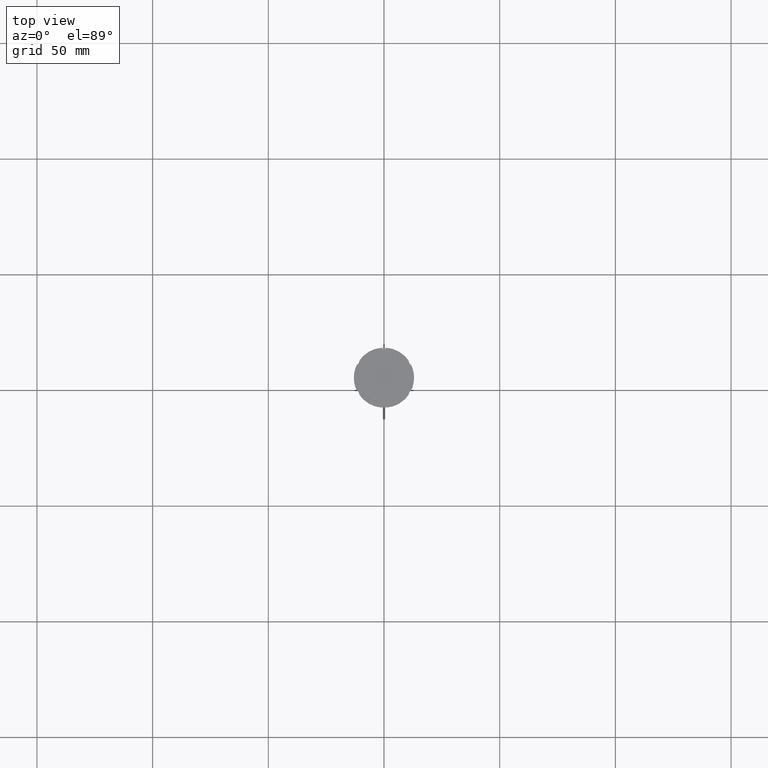
[diagram: clean part render]
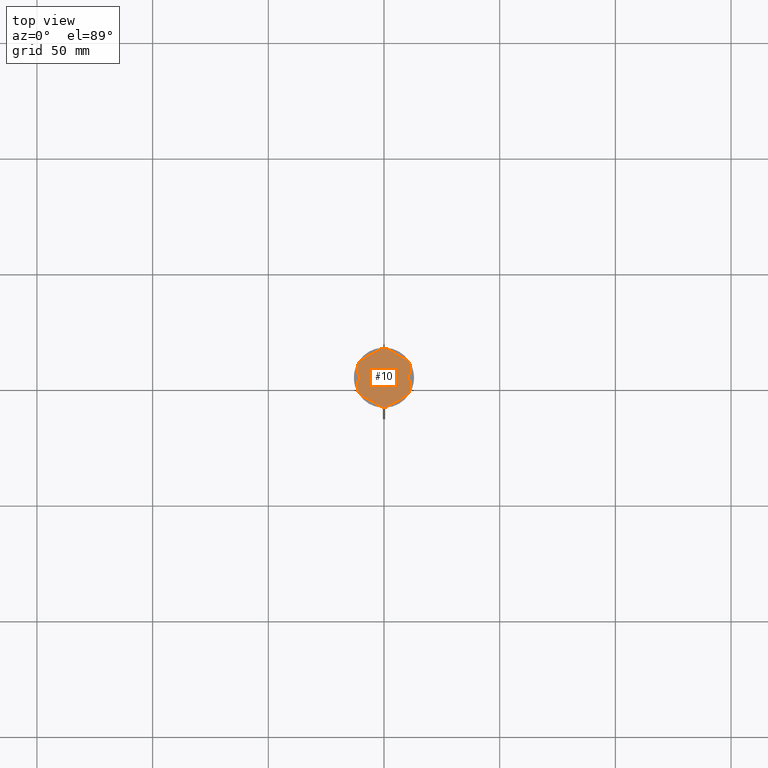
[diagram: same view with one face highlighted and labeled with its STEP entity id]
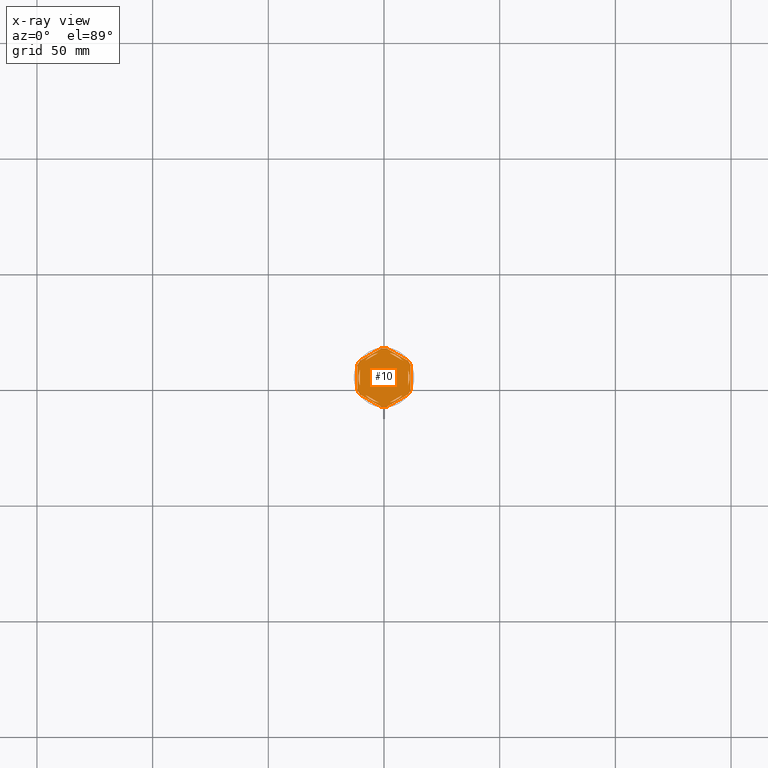
[diagram: x-ray of the same camera — body ghosted, the highlighted face saturated]
A machine part, top view. The second image highlights one B-rep face of the part: STEP entity #10.
The next image is the same camera in x-ray: the body ghosted, the highlighted face saturated — about 0% of this face is hidden behind the body in this view.
In plain terms, the highlighted planar face has unit normal (0, 0, 1).
Its self-contained STEP definition (entity closure, byte-faithful):
#7 = CARTESIAN_POINT ( 'NONE',  ( 0.000000000000000000, 0.000000000000000000, -1.000000000000000000 ) ) ;
#10 = ADVANCED_FACE ( 'NONE', ( #379, #1938, #758, #1639, #2527, #1472, #2771 ), #141, .T. ) ;
#18 = CARTESIAN_POINT ( 'NONE',  ( -8.089454172900133244, -7.453907108661111280, -1.000000000000000888 ) ) ;
#32 = CARTESIAN_POINT ( 'NONE',  ( 10.49999999999999289, -6.062177826491073063, -1.000000000000000888 ) ) ;
#70 = ORIENTED_EDGE ( 'NONE', *, *, #781, .F. ) ;
#78 = VECTOR ( 'NONE', #168, 1000.000000000000227 ) ;
#90 = DIRECTION ( 'NONE',  ( -0.000000000000000000, -0.000000000000000000, -1.000000000000000000 ) ) ;
#124 = AXIS2_PLACEMENT_3D ( 'NONE', #504, #2695, #1391 ) ;
#140 = CARTESIAN_POINT ( 'NONE',  ( 11.50000000000000000, 6.639528095680698350, -1.000000000000000000 ) ) ;
#141 = PLANE ( 'NONE',  #947 ) ;
#151 = EDGE_CURVE ( 'NONE', #1786, #2072, #622, .T. ) ;
#155 = EDGE_CURVE ( 'NONE', #2143, #1018, #2390, .T. ) ;
#168 = DIRECTION ( 'NONE',  ( 0.8660254037844387076, -0.4999999999999997780, 0.000000000000000000 ) ) ;
#176 = DIRECTION ( 'NONE',  ( -0.8660254037844387076, -0.4999999999999999445, 0.000000000000000000 ) ) ;
#181 = CIRCLE ( 'NONE', #596, 11.00000000000000000 ) ;
#217 = ORIENTED_EDGE ( 'NONE', *, *, #1669, .F. ) ;
#219 = CIRCLE ( 'NONE', #124, 11.00000000000000000 ) ;
#231 = ORIENTED_EDGE ( 'NONE', *, *, #1674, .F. ) ;
#240 = EDGE_CURVE ( 'NONE', #1504, #416, #1412, .T. ) ;
#253 = LINE ( 'NONE', #2699, #78 ) ;
#282 = CARTESIAN_POINT ( 'NONE',  ( -11.50000000000000000, 5.388877434122992582, -1.000000000000000000 ) ) ;
#293 = DIRECTION ( 'NONE',  ( 0.000000000000000000, 0.000000000000000000, 1.000000000000000000 ) ) ;
#320 = EDGE_LOOP ( 'NONE', ( #217, #779 ) ) ;
#331 = CARTESIAN_POINT ( 'NONE',  ( 11.49999999999999822, -6.639528095680694797, -1.000000000000000000 ) ) ;
#333 = VERTEX_POINT ( 'NONE', #282 ) ;
#366 = CARTESIAN_POINT ( 'NONE',  ( 0.000000000000000000, 0.000000000000000000, -1.000000000000000000 ) ) ;
#373 = CARTESIAN_POINT ( 'NONE',  ( 0.000000000000000000, 0.000000000000000000, -1.000000000000000000 ) ) ;
#377 = LINE ( 'NONE', #2166, #1334 ) ;
#379 = FACE_BOUND ( 'NONE', #320, .T. ) ;
#388 = DIRECTION ( 'NONE',  ( 0.8660254037844387076, -0.4999999999999999445, 0.000000000000000000 ) ) ;
#390 = ORIENTED_EDGE ( 'NONE', *, *, #240, .F. ) ;
#399 = CARTESIAN_POINT ( 'NONE',  ( 11.49999999999999822, -5.388877434122996135, -1.000000000000000000 ) ) ;
#414 = LINE ( 'NONE', #1266, #2308 ) ;
#416 = VERTEX_POINT ( 'NONE', #801 ) ;
#422 = LINE ( 'NONE', #1291, #961 ) ;
#437 = CARTESIAN_POINT ( 'NONE',  ( 0.000000000000000000, 0.000000000000000000, -1.000000000000000000 ) ) ;
#455 = CIRCLE ( 'NONE', #2784, 12.69999999999999929 ) ;
#461 = CARTESIAN_POINT ( 'NONE',  ( -11.50000000000000000, -5.388877434122992582, -1.000000000000000000 ) ) ;
#462 = LINE ( 'NONE', #32, #2393 ) ;
#476 = VERTEX_POINT ( 'NONE', #747 ) ;
#495 = CARTESIAN_POINT ( 'NONE',  ( 0.000000000000000000, 0.000000000000000000, -1.000000000000000000 ) ) ;
#504 = CARTESIAN_POINT ( 'NONE',  ( 0.000000000000000000, 0.000000000000000000, -1.000000000000000000 ) ) ;
#511 = EDGE_CURVE ( 'NONE', #2757, #2295, #2070, .T. ) ;
#512 = CARTESIAN_POINT ( 'NONE',  ( 8.089454172900135021, -7.453907108661109504, -1.000000000000000888 ) ) ;
#528 = EDGE_CURVE ( 'NONE', #1790, #1018, #2340, .T. ) ;
#538 = VERTEX_POINT ( 'NONE', #2084 ) ;
#551 = EDGE_CURVE ( 'NONE', #1192, #1504, #1860, .T. ) ;
#561 = ORIENTED_EDGE ( 'NONE', *, *, #1514, .F. ) ;
#562 = LINE ( 'NONE', #1196, #2034 ) ;
#567 = CARTESIAN_POINT ( 'NONE',  ( -10.49999999999999822, 6.062177826491068622, -1.000000000000000888 ) ) ;
#586 = CARTESIAN_POINT ( 'NONE',  ( 0.000000000000000000, 0.000000000000000000, -1.000000000000000000 ) ) ;
#596 = AXIS2_PLACEMENT_3D ( 'NONE', #366, #1405, #2764 ) ;
#611 = DIRECTION ( 'NONE',  ( 1.000000000000000000, 0.000000000000000000, 0.000000000000000000 ) ) ;
#612 = ORIENTED_EDGE ( 'NONE', *, *, #2047, .F. ) ;
#613 = CARTESIAN_POINT ( 'NONE',  ( -1.083095244168779780, -12.65373086058253982, -1.000000000000000000 ) ) ;
#622 = CIRCLE ( 'NONE', #1734, 11.00000000000000000 ) ;
#638 = VECTOR ( 'NONE', #821, 1000.000000000000000 ) ;
#648 = DIRECTION ( 'NONE',  ( 0.000000000000000000, 0.000000000000000000, 1.000000000000000000 ) ) ;
#679 = AXIS2_PLACEMENT_3D ( 'NONE', #1202, #90, #2142 ) ;
#684 = CIRCLE ( 'NONE', #1231, 12.69999999999999929 ) ;
#688 = AXIS2_PLACEMENT_3D ( 'NONE', #1929, #1666, #2826 ) ;
#709 = ORIENTED_EDGE ( 'NONE', *, *, #511, .F. ) ;
#713 = EDGE_CURVE ( 'NONE', #333, #1594, #2583, .T. ) ;
#727 = EDGE_CURVE ( 'NONE', #1239, #538, #462, .T. ) ;
#729 = CARTESIAN_POINT ( 'NONE',  ( 11.49999999999999822, 5.388877434122992582, -1.000000000000000000 ) ) ;
#738 = ORIENTED_EDGE ( 'NONE', *, *, #551, .F. ) ;
#747 = CARTESIAN_POINT ( 'NONE',  ( 2.410545827099861871, 10.73262637081210791, -1.000000000000000888 ) ) ;
#758 = FACE_BOUND ( 'NONE', #1632, .T. ) ;
#770 = CARTESIAN_POINT ( 'NONE',  ( 0.000000000000000000, 0.000000000000000000, -1.000000000000000000 ) ) ;
#779 = ORIENTED_EDGE ( 'NONE', *, *, #2779, .F. ) ;
#781 = EDGE_CURVE ( 'NONE', #1677, #1349, #2679, .T. ) ;
#782 = ORIENTED_EDGE ( 'NONE', *, *, #1864, .T. ) ;
#801 = CARTESIAN_POINT ( 'NONE',  ( -11.00000000000000000, 0.000000000000000000, -1.000000000000000000 ) ) ;
#815 = VECTOR ( 'NONE', #1227, 1000.000000000000000 ) ;
#818 = DIRECTION ( 'NONE',  ( 0.000000000000000000, 0.000000000000000000, 1.000000000000000000 ) ) ;
#821 = DIRECTION ( 'NONE',  ( 0.000000000000000000, -1.000000000000000000, 0.000000000000000000 ) ) ;
#831 = DIRECTION ( 'NONE',  ( -0.8660254037844385966, -0.5000000000000001110, 0.000000000000000000 ) ) ;
#834 = DIRECTION ( 'NONE',  ( -0.8660254037844384856, 0.5000000000000002220, 0.000000000000000000 ) ) ;
#841 = ORIENTED_EDGE ( 'NONE', *, *, #1984, .F. ) ;
#859 = DIRECTION ( 'NONE',  ( -0.000000000000000000, -0.000000000000000000, -1.000000000000000000 ) ) ;
#877 = CARTESIAN_POINT ( 'NONE',  ( 0.000000000000000000, 0.000000000000000000, -1.000000000000000000 ) ) ;
#887 = CARTESIAN_POINT ( 'NONE',  ( 0.000000000000000000, 0.000000000000000000, -1.000000000000000000 ) ) ;
#900 = DIRECTION ( 'NONE',  ( -1.430775808321104180E-16, -1.000000000000000000, 0.000000000000000000 ) ) ;
#947 = AXIS2_PLACEMENT_3D ( 'NONE', #586, #818, #1191 ) ;
#949 = AXIS2_PLACEMENT_3D ( 'NONE', #7, #1263, #1049 ) ;
#961 = VECTOR ( 'NONE', #831, 1000.000000000000114 ) ;
#990 = VERTEX_POINT ( 'NONE', #1162 ) ;
#1002 = ORIENTED_EDGE ( 'NONE', *, *, #528, .T. ) ;
#1018 = VERTEX_POINT ( 'NONE', #729 ) ;
#1045 = VECTOR ( 'NONE', #2110, 1000.000000000000000 ) ;
#1046 = LINE ( 'NONE', #1557, #2310 ) ;
#1049 = DIRECTION ( 'NONE',  ( 1.000000000000000000, 0.000000000000000000, 0.000000000000000000 ) ) ;
#1056 = ORIENTED_EDGE ( 'NONE', *, *, #713, .F. ) ;
#1075 = DIRECTION ( 'NONE',  ( 1.000000000000000000, -1.776356839400250465E-14, 0.000000000000000000 ) ) ;
#1076 = VERTEX_POINT ( 'NONE', #2523 ) ;
#1087 = LINE ( 'NONE', #1982, #638 ) ;
#1135 = AXIS2_PLACEMENT_3D ( 'NONE', #877, #859, #1075 ) ;
#1146 = ORIENTED_EDGE ( 'NONE', *, *, #2325, .T. ) ;
#1162 = CARTESIAN_POINT ( 'NONE',  ( -2.410545827099867200, 10.73262637081210613, -1.000000000000000888 ) ) ;
#1180 = EDGE_LOOP ( 'NONE', ( #2139, #231 ) ) ;
#1191 = DIRECTION ( 'NONE',  ( 1.000000000000000000, 0.000000000000000000, -0.000000000000000000 ) ) ;
#1192 = VERTEX_POINT ( 'NONE', #1493 ) ;
#1196 = CARTESIAN_POINT ( 'NONE',  ( -1.734723475976807094E-15, 12.12435565298214080, -1.000000000000000888 ) ) ;
#1201 = DIRECTION ( 'NONE',  ( -0.000000000000000000, -0.000000000000000000, -1.000000000000000000 ) ) ;
#1202 = CARTESIAN_POINT ( 'NONE',  ( 0.000000000000000000, 0.000000000000000000, -1.000000000000000000 ) ) ;
#1226 = DIRECTION ( 'NONE',  ( 1.000000000000000000, 0.000000000000000000, 0.000000000000000000 ) ) ;
#1227 = DIRECTION ( 'NONE',  ( 0.000000000000000000, 1.000000000000000000, 0.000000000000000000 ) ) ;
#1231 = AXIS2_PLACEMENT_3D ( 'NONE', #2077, #1377, #2270 ) ;
#1235 = ORIENTED_EDGE ( 'NONE', *, *, #727, .F. ) ;
#1239 = VERTEX_POINT ( 'NONE', #2228 ) ;
#1258 = LINE ( 'NONE', #2416, #2648 ) ;
#1263 = DIRECTION ( 'NONE',  ( 0.000000000000000000, 0.000000000000000000, 1.000000000000000000 ) ) ;
#1264 = ORIENTED_EDGE ( 'NONE', *, *, #151, .F. ) ;
#1266 = CARTESIAN_POINT ( 'NONE',  ( -10.49999999999999822, -6.062177826491068622, -1.000000000000000888 ) ) ;
#1291 = CARTESIAN_POINT ( 'NONE',  ( 0.000000000000000000, 13.27905619136138959, -1.000000000000000000 ) ) ;
#1306 = EDGE_LOOP ( 'NONE', ( #1777, #1235 ) ) ;
#1308 = CARTESIAN_POINT ( 'NONE',  ( 2.410545827099865868, -10.73262637081210791, -1.000000000000000888 ) ) ;
#1329 = ORIENTED_EDGE ( 'NONE', *, *, #155, .F. ) ;
#1334 = VECTOR ( 'NONE', #176, 999.9999999999998863 ) ;
#1345 = ORIENTED_EDGE ( 'NONE', *, *, #1878, .T. ) ;
#1349 = VERTEX_POINT ( 'NONE', #461 ) ;
#1377 = DIRECTION ( 'NONE',  ( -0.000000000000000000, -0.000000000000000000, -1.000000000000000000 ) ) ;
#1391 = DIRECTION ( 'NONE',  ( 1.000000000000000000, 0.000000000000000000, 0.000000000000000000 ) ) ;
#1393 = VERTEX_POINT ( 'NONE', #1805 ) ;
#1405 = DIRECTION ( 'NONE',  ( 0.000000000000000000, 0.000000000000000000, 1.000000000000000000 ) ) ;
#1412 = CIRCLE ( 'NONE', #949, 11.00000000000000000 ) ;
#1438 = CARTESIAN_POINT ( 'NONE',  ( 10.41690475583121156, 7.264853426459550789, -1.000000000000000000 ) ) ;
#1443 = VERTEX_POINT ( 'NONE', #1843 ) ;
#1444 = DIRECTION ( 'NONE',  ( 0.8660254037844385966, 0.5000000000000001110, -0.000000000000000000 ) ) ;
#1456 = EDGE_CURVE ( 'NONE', #990, #1076, #219, .T. ) ;
#1472 = FACE_BOUND ( 'NONE', #1180, .T. ) ;
#1493 = CARTESIAN_POINT ( 'NONE',  ( -10.49999999999999822, -3.278719262151000624, -1.000000000000000888 ) ) ;
#1499 = DIRECTION ( 'NONE',  ( 1.000000000000000000, 0.000000000000000000, 0.000000000000000000 ) ) ;
#1504 = VERTEX_POINT ( 'NONE', #1623 ) ;
#1514 = EDGE_CURVE ( 'NONE', #1393, #2744, #684, .T. ) ;
#1556 = CARTESIAN_POINT ( 'NONE',  ( -2.410545827099876082, -10.73262637081210435, -1.000000000000000888 ) ) ;
#1557 = CARTESIAN_POINT ( 'NONE',  ( 5.612359739892467248E-18, -13.27905619136138959, -1.000000000000000000 ) ) ;
#1581 = ORIENTED_EDGE ( 'NONE', *, *, #2401, .T. ) ;
#1594 = VERTEX_POINT ( 'NONE', #2778 ) ;
#1623 = CARTESIAN_POINT ( 'NONE',  ( -10.49999999999999822, 3.278719262151000624, -1.000000000000000888 ) ) ;
#1632 = EDGE_LOOP ( 'NONE', ( #1264, #2717 ) ) ;
#1639 = FACE_BOUND ( 'NONE', #2459, .T. ) ;
#1666 = DIRECTION ( 'NONE',  ( 0.000000000000000000, 0.000000000000000000, 1.000000000000000000 ) ) ;
#1669 = EDGE_CURVE ( 'NONE', #1443, #476, #2591, .T. ) ;
#1674 = EDGE_CURVE ( 'NONE', #1076, #990, #562, .T. ) ;
#1677 = VERTEX_POINT ( 'NONE', #2335 ) ;
#1687 = LINE ( 'NONE', #140, #2691 ) ;
#1734 = AXIS2_PLACEMENT_3D ( 'NONE', #437, #648, #1499 ) ;
#1753 = CIRCLE ( 'NONE', #2732, 11.00000000000000000 ) ;
#1767 = EDGE_CURVE ( 'NONE', #1863, #2444, #414, .T. ) ;
#1776 = DIRECTION ( 'NONE',  ( -0.000000000000000000, -0.000000000000000000, -1.000000000000000000 ) ) ;
#1777 = ORIENTED_EDGE ( 'NONE', *, *, #2617, .F. ) ;
#1786 = VERTEX_POINT ( 'NONE', #1308 ) ;
#1790 = VERTEX_POINT ( 'NONE', #399 ) ;
#1803 = VERTEX_POINT ( 'NONE', #1992 ) ;
#1805 = CARTESIAN_POINT ( 'NONE',  ( -1.083095244168783333, 12.65373086058254160, -1.000000000000000000 ) ) ;
#1824 = DIRECTION ( 'NONE',  ( 1.000000000000000000, 0.000000000000000000, 0.000000000000000000 ) ) ;
#1843 = CARTESIAN_POINT ( 'NONE',  ( 8.089454172900138573, 7.453907108661105063, -1.000000000000000888 ) ) ;
#1860 = LINE ( 'NONE', #567, #815 ) ;
#1863 = VERTEX_POINT ( 'NONE', #1556 ) ;
#1864 = EDGE_CURVE ( 'NONE', #333, #1349, #1087, .T. ) ;
#1878 = EDGE_CURVE ( 'NONE', #1677, #2295, #253, .T. ) ;
#1925 = DIRECTION ( 'NONE',  ( 0.000000000000000000, 0.000000000000000000, 1.000000000000000000 ) ) ;
#1929 = CARTESIAN_POINT ( 'NONE',  ( 0.000000000000000000, 0.000000000000000000, -1.000000000000000000 ) ) ;
#1935 = CARTESIAN_POINT ( 'NONE',  ( 0.000000000000000000, 0.000000000000000000, -1.000000000000000000 ) ) ;
#1938 = FACE_BOUND ( 'NONE', #1306, .T. ) ;
#1940 = DIRECTION ( 'NONE',  ( 0.8660254037844385966, 0.4999999999999999445, 0.000000000000000000 ) ) ;
#1982 = CARTESIAN_POINT ( 'NONE',  ( -11.50000000000000000, 6.639528095680691244, -1.000000000000000000 ) ) ;
#1984 = EDGE_CURVE ( 'NONE', #416, #1192, #1753, .T. ) ;
#1992 = CARTESIAN_POINT ( 'NONE',  ( 10.41690475583121867, -7.264853426459537467, -1.000000000000000000 ) ) ;
#2028 = AXIS2_PLACEMENT_3D ( 'NONE', #1935, #2832, #611 ) ;
#2034 = VECTOR ( 'NONE', #1444, 1000.000000000000000 ) ;
#2047 = EDGE_CURVE ( 'NONE', #2444, #1863, #2170, .T. ) ;
#2060 = EDGE_LOOP ( 'NONE', ( #390, #738, #841 ) ) ;
#2070 = CIRCLE ( 'NONE', #679, 12.69999999999999929 ) ;
#2072 = VERTEX_POINT ( 'NONE', #512 ) ;
#2077 = CARTESIAN_POINT ( 'NONE',  ( 0.000000000000000000, 0.000000000000000000, -1.000000000000000000 ) ) ;
#2084 = CARTESIAN_POINT ( 'NONE',  ( 10.49999999999999467, -3.278719262151014835, -1.000000000000000888 ) ) ;
#2110 = DIRECTION ( 'NONE',  ( 1.306360520641008153E-16, 1.000000000000000000, 0.000000000000000000 ) ) ;
#2139 = ORIENTED_EDGE ( 'NONE', *, *, #1456, .F. ) ;
#2142 = DIRECTION ( 'NONE',  ( 1.000000000000000000, 0.000000000000000000, 0.000000000000000000 ) ) ;
#2143 = VERTEX_POINT ( 'NONE', #1438 ) ;
#2166 = CARTESIAN_POINT ( 'NONE',  ( -2.602085213965210642E-15, -12.12435565298214080, -1.000000000000000888 ) ) ;
#2169 = ORIENTED_EDGE ( 'NONE', *, *, #2646, .F. ) ;
#2170 = CIRCLE ( 'NONE', #2536, 11.00000000000000000 ) ;
#2177 = EDGE_CURVE ( 'NONE', #2143, #2744, #1687, .T. ) ;
#2228 = CARTESIAN_POINT ( 'NONE',  ( 10.49999999999999467, 3.278719262151012170, -1.000000000000000888 ) ) ;
#2270 = DIRECTION ( 'NONE',  ( 1.000000000000000000, 1.243449787580175325E-14, 0.000000000000000000 ) ) ;
#2295 = VERTEX_POINT ( 'NONE', #613 ) ;
#2308 = VECTOR ( 'NONE', #834, 1000.000000000000000 ) ;
#2310 = VECTOR ( 'NONE', #1940, 1000.000000000000114 ) ;
#2325 = EDGE_CURVE ( 'NONE', #1393, #1594, #422, .T. ) ;
#2335 = CARTESIAN_POINT ( 'NONE',  ( -10.41690475583121334, -7.264853426459548125, -1.000000000000000000 ) ) ;
#2340 = LINE ( 'NONE', #331, #1045 ) ;
#2382 = CARTESIAN_POINT ( 'NONE',  ( 1.083095244168774673, -12.65373086058253982, -1.000000000000000000 ) ) ;
#2390 = CIRCLE ( 'NONE', #1135, 12.69999999999999929 ) ;
#2393 = VECTOR ( 'NONE', #900, 1000.000000000000000 ) ;
#2401 = EDGE_CURVE ( 'NONE', #2757, #1803, #1046, .T. ) ;
#2416 = CARTESIAN_POINT ( 'NONE',  ( 10.49999999999999467, 6.062177826491072175, -1.000000000000000888 ) ) ;
#2444 = VERTEX_POINT ( 'NONE', #18 ) ;
#2459 = EDGE_LOOP ( 'NONE', ( #612, #2706 ) ) ;
#2523 = CARTESIAN_POINT ( 'NONE',  ( -8.089454172900135021, 7.453907108661106840, -1.000000000000000888 ) ) ;
#2527 = FACE_BOUND ( 'NONE', #2060, .T. ) ;
#2536 = AXIS2_PLACEMENT_3D ( 'NONE', #495, #293, #1824 ) ;
#2548 = DIRECTION ( 'NONE',  ( -0.8660254037844388186, 0.4999999999999997224, 0.000000000000000000 ) ) ;
#2583 = CIRCLE ( 'NONE', #2028, 12.69999999999999929 ) ;
#2591 = CIRCLE ( 'NONE', #688, 11.00000000000000000 ) ;
#2617 = EDGE_CURVE ( 'NONE', #538, #1239, #181, .T. ) ;
#2632 = EDGE_LOOP ( 'NONE', ( #1002, #1329, #2693, #561, #1146, #1056, #782, #70, #1345, #709, #1581, #2169 ) ) ;
#2646 = EDGE_CURVE ( 'NONE', #1790, #1803, #455, .T. ) ;
#2648 = VECTOR ( 'NONE', #388, 999.9999999999998863 ) ;
#2666 = DIRECTION ( 'NONE',  ( 1.000000000000000000, 7.105427357601001859E-15, 0.000000000000000000 ) ) ;
#2679 = CIRCLE ( 'NONE', #2722, 12.69999999999999929 ) ;
#2691 = VECTOR ( 'NONE', #2548, 1000.000000000000000 ) ;
#2693 = ORIENTED_EDGE ( 'NONE', *, *, #2177, .T. ) ;
#2695 = DIRECTION ( 'NONE',  ( 0.000000000000000000, 0.000000000000000000, 1.000000000000000000 ) ) ;
#2699 = CARTESIAN_POINT ( 'NONE',  ( -11.50000000000000000, -6.639528095680696573, -1.000000000000000000 ) ) ;
#2706 = ORIENTED_EDGE ( 'NONE', *, *, #1767, .F. ) ;
#2715 = DIRECTION ( 'NONE',  ( 1.000000000000000000, 0.000000000000000000, 0.000000000000000000 ) ) ;
#2717 = ORIENTED_EDGE ( 'NONE', *, *, #2799, .F. ) ;
#2722 = AXIS2_PLACEMENT_3D ( 'NONE', #887, #1776, #2666 ) ;
#2732 = AXIS2_PLACEMENT_3D ( 'NONE', #373, #1925, #2715 ) ;
#2744 = VERTEX_POINT ( 'NONE', #2853 ) ;
#2757 = VERTEX_POINT ( 'NONE', #2382 ) ;
#2764 = DIRECTION ( 'NONE',  ( 1.000000000000000000, 0.000000000000000000, 0.000000000000000000 ) ) ;
#2771 = FACE_OUTER_BOUND ( 'NONE', #2632, .T. ) ;
#2778 = CARTESIAN_POINT ( 'NONE',  ( -10.41690475583121689, 7.264853426459546348, -1.000000000000000000 ) ) ;
#2779 = EDGE_CURVE ( 'NONE', #476, #1443, #1258, .T. ) ;
#2784 = AXIS2_PLACEMENT_3D ( 'NONE', #770, #1201, #1226 ) ;
#2799 = EDGE_CURVE ( 'NONE', #2072, #1786, #377, .T. ) ;
#2826 = DIRECTION ( 'NONE',  ( 1.000000000000000000, 0.000000000000000000, 0.000000000000000000 ) ) ;
#2832 = DIRECTION ( 'NONE',  ( -0.000000000000000000, -0.000000000000000000, -1.000000000000000000 ) ) ;
#2853 = CARTESIAN_POINT ( 'NONE',  ( 1.083095244168781557, 12.65373086058254160, -1.000000000000000000 ) ) ;